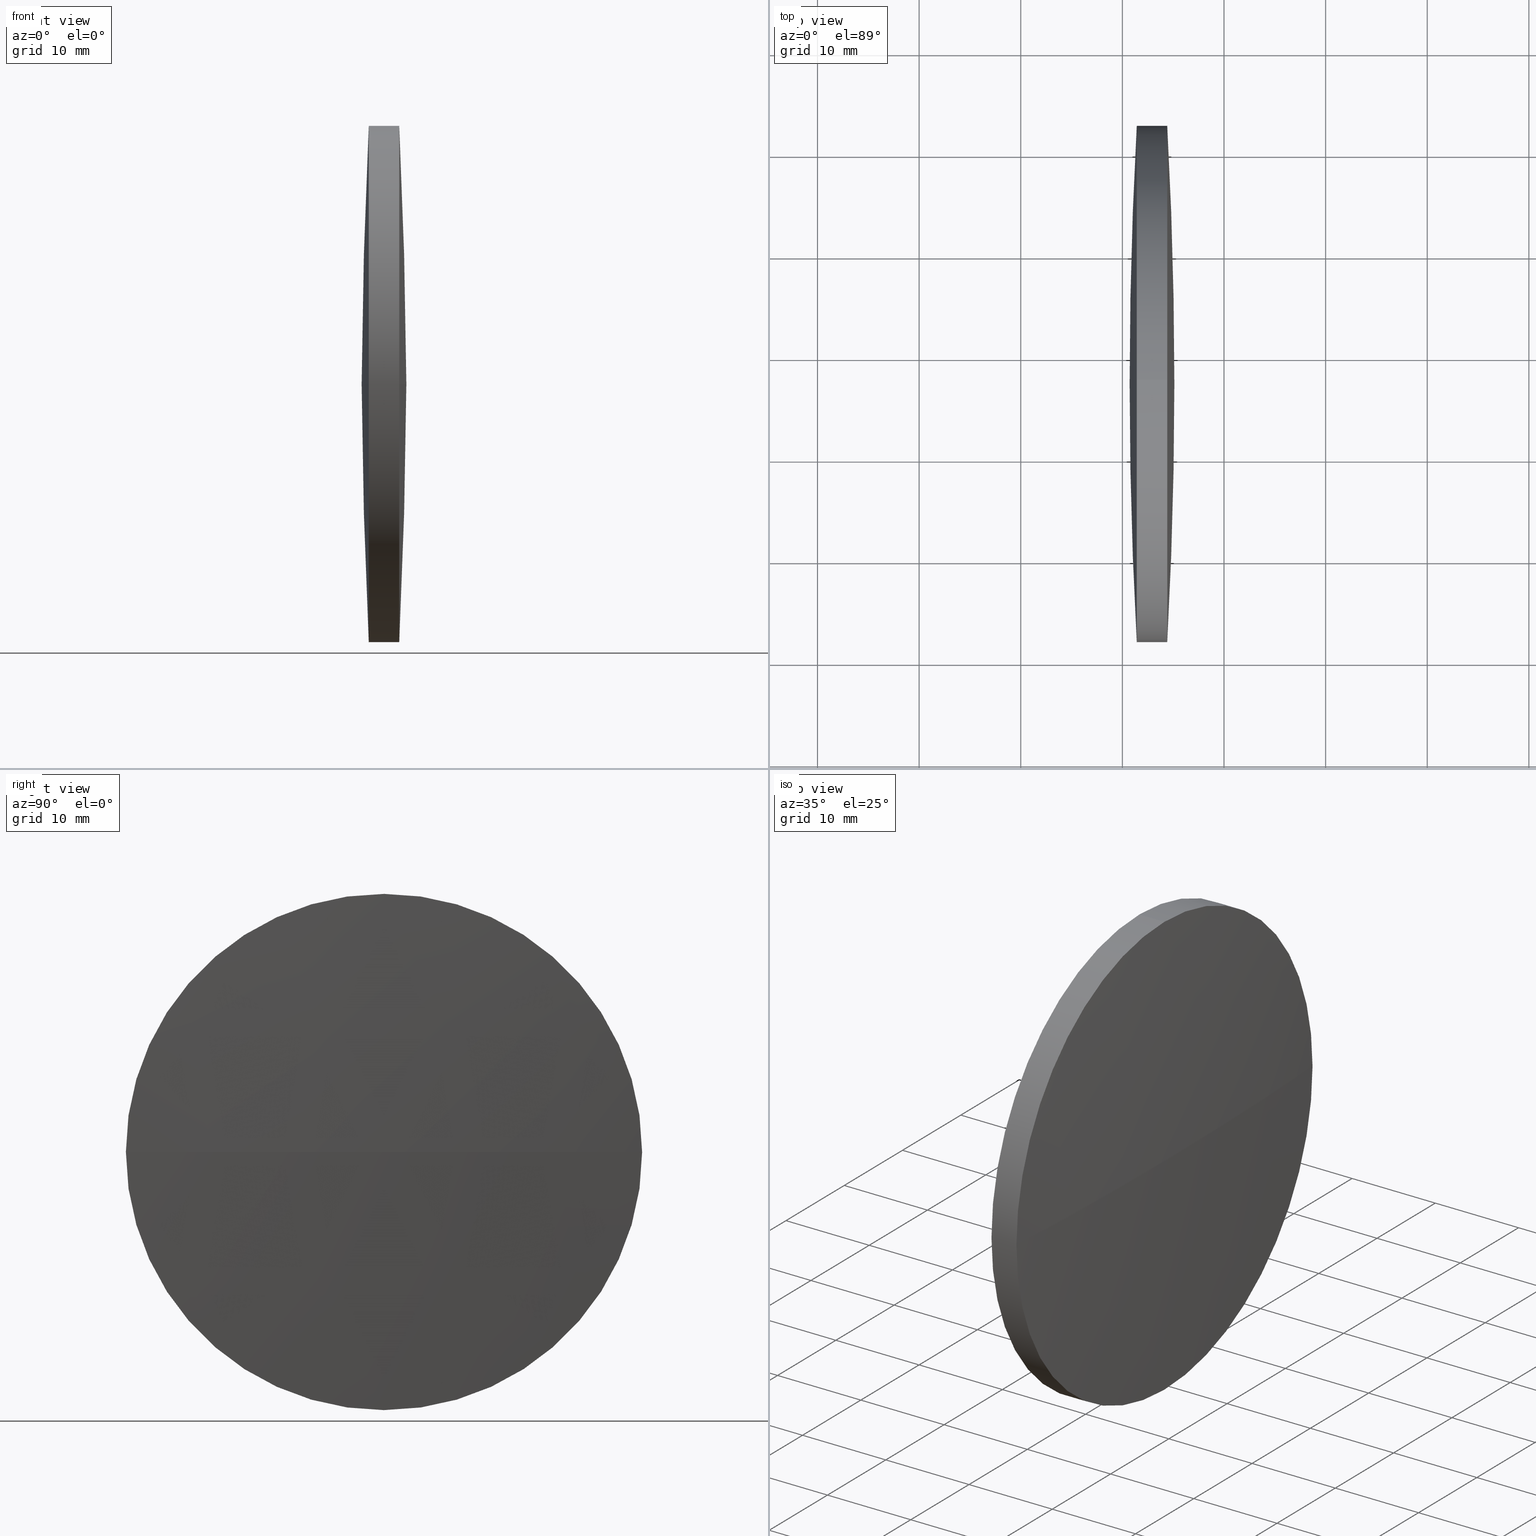
[diagram: canonical four-view strip — front | top / right | iso, engineering-drawing reading convention]
A machine part, canonical four-view strip (front | top / right | iso — engineering-drawing reading convention). The complete STEP part file that produces these views, byte-faithful:
ISO-10303-21;
HEADER;
FILE_DESCRIPTION (( 'STEP AP203' ),
    '1' );
FILE_NAME ('110110.STEP',
    '2019-07-08T08:31:53',
    ( '' ),
    ( '' ),
    'SwSTEP 2.0',
    'SolidWorks 2016',
    '' );
FILE_SCHEMA (( 'CONFIG_CONTROL_DESIGN' ));
ENDSEC;

DATA;
#1 = CARTESIAN_POINT ( 'NONE',  ( 175.1163831493249700, 97.23222604636886500, 0.0000000000000000000 ) ) ;
#2 = CIRCLE ( 'NONE', #60, 25.39999999999999100 ) ;
#3 = EDGE_CURVE ( 'NONE', #310, #177, #70, .T. ) ;
#4 = UNCERTAINTY_MEASURE_WITH_UNIT (LENGTH_MEASURE( 1.000000000000000100E-005 ), #144, 'distance_accuracy_value', 'NONE');
#5 = COORDINATED_UNIVERSAL_TIME_OFFSET ( 8, 0, .AHEAD. ) ;
#6 = DIRECTION ( 'NONE',  ( 0.0000000000000000000, 0.0000000000000000000, 1.000000000000000000 ) ) ;
#7 = PRODUCT_DEFINITION_SHAPE ( 'NONE', 'NONE',  #156 ) ;
#8 = CC_DESIGN_PERSON_AND_ORGANIZATION_ASSIGNMENT ( #134, #336, ( #174 ) ) ;
#9 = DIRECTION ( 'NONE',  ( -1.000000000000000000, -0.0000000000000000000, -0.0000000000000000000 ) ) ;
#10 = SPHERICAL_SURFACE ( 'NONE', #91, 461.1675577966340100 ) ;
#11 = SPHERICAL_SURFACE ( 'NONE', #24, 461.1675577966281000 ) ;
#12 = CC_DESIGN_APPROVAL ( #201, ( #290 ) ) ;
#13 = PERSON_AND_ORGANIZATION ( #19, #280 ) ;
#14 = PRODUCT_RELATED_PRODUCT_CATEGORY ( 'detail', '', ( #174 ) ) ;
#15 = VERTEX_POINT ( 'NONE', #314 ) ;
#16 = CC_DESIGN_PERSON_AND_ORGANIZATION_ASSIGNMENT ( #329, #230, ( #306 ) ) ;
#17 = LOCAL_TIME ( 16, 31, 53.00000000000000000, #207 ) ;
#18 = ORIENTED_EDGE ( 'NONE', *, *, #326, .T. ) ;
#19 = PERSON ( 'δָ��', 'δָ��', 'δָ��', ('δָ��'), ('δָ��'), ('δָ��') ) ;
#20 = EDGE_CURVE ( 'NONE', #143, #316, #212, .T. ) ;
#21 = APPLICATION_PROTOCOL_DEFINITION ( 'international standard', 'config_control_design', 1994, #342 ) ;
#22 = EDGE_LOOP ( 'NONE', ( #168, #48, #42, #78 ) ) ;
#23 = CALENDAR_DATE ( 2019, 8, 7 ) ;
#24 = AXIS2_PLACEMENT_3D ( 'NONE', #161, #241, #238 ) ;
#25 = MECHANICAL_CONTEXT ( 'NONE', #342, 'mechanical' ) ;
#26 =( GEOMETRIC_REPRESENTATION_CONTEXT ( 3 ) GLOBAL_UNCERTAINTY_ASSIGNED_CONTEXT ( ( #4 ) ) GLOBAL_UNIT_ASSIGNED_CONTEXT ( ( #144, #113, #141 ) ) REPRESENTATION_CONTEXT ( 'NONE', 'WORKASPACE' ) );
#27 = CIRCLE ( 'NONE', #220, 25.39999999999999100 ) ;
#28 = DIRECTION ( 'NONE',  ( -1.000000000000000000, -0.0000000000000000000, -0.0000000000000000000 ) ) ;
#29 = EDGE_LOOP ( 'NONE', ( #327, #89, #121, #231, #117, #249 ) ) ;
#30 = ADVANCED_FACE ( 'NONE', ( #243 ), #297, .T. ) ;
#31 = DIRECTION ( 'NONE',  ( 0.0000000000000000000, 0.0000000000000000000, 1.000000000000000000 ) ) ;
#32 = ORIENTED_EDGE ( 'NONE', *, *, #54, .F. ) ;
#33 = EDGE_CURVE ( 'NONE', #55, #195, #2, .T. ) ;
#34 = DIRECTION ( 'NONE',  ( -1.000000000000000000, -0.0000000000000000000, -0.0000000000000000000 ) ) ;
#35 = APPROVAL_DATE_TIME ( #116, #122 ) ;
#36 = DIRECTION ( 'NONE',  ( -1.000000000000000000, -0.0000000000000000000, -0.0000000000000000000 ) ) ;
#37 = CARTESIAN_POINT ( 'NONE',  ( 174.4163664064679400, 97.23222604636956100, 0.0000000000000000000 ) ) ;
#38 = FACE_OUTER_BOUND ( 'NONE', #227, .T. ) ;
#39 = CARTESIAN_POINT ( 'NONE',  ( 171.4164086921822200, 97.23222604636956100, 0.0000000000000000000 ) ) ;
#40 = DATE_AND_TIME ( #23, #43 ) ;
#41 = AXIS2_PLACEMENT_3D ( 'NONE', #242, #269, #188 ) ;
#42 = ORIENTED_EDGE ( 'NONE', *, *, #136, .F. ) ;
#43 = LOCAL_TIME ( 16, 31, 53.00000000000000000, #251 ) ;
#44 = AXIS2_PLACEMENT_3D ( 'NONE', #37, #81, #6 ) ;
#45 = CC_DESIGN_DATE_AND_TIME_ASSIGNMENT ( #319, #206, ( #156 ) ) ;
#46 = LOCAL_TIME ( 16, 31, 53.00000000000000000, #252 ) ;
#47 = APPLICATION_CONTEXT ( 'configuration controlled 3d designs of mechanical parts and assemblies' ) ;
#48 = ORIENTED_EDGE ( 'NONE', *, *, #332, .T. ) ;
#49 = AXIS2_PLACEMENT_3D ( 'NONE', #244, #114, #305 ) ;
#50 = APPROVAL_ROLE ( '' ) ;
#51 = SECURITY_CLASSIFICATION_LEVEL ( 'unclassified' ) ;
#52 = PERSON_AND_ORGANIZATION ( #19, #280 ) ;
#53 = DIRECTION ( 'NONE',  ( -1.000000000000000000, -0.0000000000000000000, -0.0000000000000000000 ) ) ;
#54 = EDGE_CURVE ( 'NONE', #195, #310, #289, .T. ) ;
#55 = VERTEX_POINT ( 'NONE', #265 ) ;
#56 = CALENDAR_DATE ( 2019, 8, 7 ) ;
#57 = DESIGN_CONTEXT ( 'detailed design', #229, 'design' ) ;
#58 = CARTESIAN_POINT ( 'NONE',  ( 631.8839497459532600, 97.23222604636890800, 0.0000000000000000000 ) ) ;
#59 = CIRCLE ( 'NONE', #75, 461.1675577966281000 ) ;
#60 = AXIS2_PLACEMENT_3D ( 'NONE', #137, #87, #107 ) ;
#61 = CARTESIAN_POINT ( 'NONE',  ( 171.4164086921822200, 122.6322260463687600, 0.0000000000000000000 ) ) ;
#62 = DATE_AND_TIME ( #76, #223 ) ;
#63 = PERSON_AND_ORGANIZATION ( #19, #280 ) ;
#64 = AXIS2_PLACEMENT_3D ( 'NONE', #261, #215, #318 ) ;
#65 = CIRCLE ( 'NONE', #77, 25.39999999999999100 ) ;
#66 = ORIENTED_EDGE ( 'NONE', *, *, #344, .T. ) ;
#67 = CALENDAR_DATE ( 2019, 8, 7 ) ;
#68 = MANIFOLD_SOLID_BREP ( '��ת1', #294 ) ;
#69 = APPROVAL_PERSON_ORGANIZATION ( #139, #85, #126 ) ;
#70 = CIRCLE ( 'NONE', #189, 25.39999999999999100 ) ;
#71 = AXIS2_PLACEMENT_3D ( 'NONE', #190, #162, #82 ) ;
#72 = PERSON_AND_ORGANIZATION_ROLE ( 'design_owner' ) ;
#73 = ADVANCED_FACE ( 'NONE', ( #165 ), #11, .T. ) ;
#74 = ORIENTED_EDGE ( 'NONE', *, *, #302, .T. ) ;
#75 = AXIS2_PLACEMENT_3D ( 'NONE', #58, #324, #163 ) ;
#76 = CALENDAR_DATE ( 2019, 8, 7 ) ;
#77 = AXIS2_PLACEMENT_3D ( 'NONE', #271, #9, #193 ) ;
#78 = ORIENTED_EDGE ( 'NONE', *, *, #3, .F. ) ;
#79 = DIRECTION ( 'NONE',  ( 0.0000000000000000000, 0.0000000000000000000, 1.000000000000000000 ) ) ;
#80 = LOCAL_TIME ( 16, 31, 53.00000000000000000, #93 ) ;
#81 = DIRECTION ( 'NONE',  ( -1.000000000000000000, -0.0000000000000000000, -0.0000000000000000000 ) ) ;
#82 = DIRECTION ( 'NONE',  ( 1.000000000000000000, 0.0000000000000000000, 0.0000000000000000000 ) ) ;
#83 = ORIENTED_EDGE ( 'NONE', *, *, #33, .T. ) ;
#84 = PERSON_AND_ORGANIZATION ( #19, #280 ) ;
#85 = APPROVAL ( #308, 'δָ��' ) ;
#86 = COORDINATED_UNIVERSAL_TIME_OFFSET ( 8, 0, .AHEAD. ) ;
#87 = DIRECTION ( 'NONE',  ( -1.000000000000000000, -0.0000000000000000000, -0.0000000000000000000 ) ) ;
#88 = SPHERICAL_SURFACE ( 'NONE', #130, 461.1675577966340100 ) ;
#89 = ORIENTED_EDGE ( 'NONE', *, *, #203, .T. ) ;
#90 = DIRECTION ( 'NONE',  ( -1.000000000000000000, -0.0000000000000000000, -0.0000000000000000000 ) ) ;
#91 = AXIS2_PLACEMENT_3D ( 'NONE', #109, #213, #140 ) ;
#92 = ORIENTED_EDGE ( 'NONE', *, *, #33, .F. ) ;
#93 = COORDINATED_UNIVERSAL_TIME_OFFSET ( 8, 0, .AHEAD. ) ;
#94 = FACE_OUTER_BOUND ( 'NONE', #29, .T. ) ;
#95 = VERTEX_POINT ( 'NONE', #268 ) ;
#96 = AXIS2_PLACEMENT_3D ( 'NONE', #259, #28, #208 ) ;
#97 = APPROVAL_PERSON_ORGANIZATION ( #173, #253, #102 ) ;
#98 = PERSON_AND_ORGANIZATION_ROLE ( 'creator' ) ;
#99 = DATE_TIME_ROLE ( 'classification_date' ) ;
#100 = ADVANCED_FACE ( 'NONE', ( #38 ), #210, .T. ) ;
#101 = DATE_TIME_ROLE ( 'classification_date' ) ;
#102 = APPROVAL_ROLE ( '' ) ;
#103 = SECURITY_CLASSIFICATION ( '', '', #313 ) ;
#104 = VECTOR ( 'NONE', #34, 1000.000000000000000 ) ;
#105 = COORDINATED_UNIVERSAL_TIME_OFFSET ( 8, 0, .AHEAD. ) ;
#106 = AXIS2_PLACEMENT_3D ( 'NONE', #217, #164, #323 ) ;
#107 = DIRECTION ( 'NONE',  ( 0.0000000000000000000, 0.0000000000000000000, 1.000000000000000000 ) ) ;
#108 = ORIENTED_EDGE ( 'NONE', *, *, #302, .F. ) ;
#109 = CARTESIAN_POINT ( 'NONE',  ( -286.0511746473089800, 97.23222604636883700, 0.0000000000000000000 ) ) ;
#110 = APPROVAL_DATE_TIME ( #40, #159 ) ;
#111 = DIRECTION ( 'NONE',  ( -0.0000000000000000000, 0.0000000000000000000, -1.000000000000000000 ) ) ;
#112 = CARTESIAN_POINT ( 'NONE',  ( 165.7441079421506900, 97.23222604636956100, 25.39999999999999100 ) ) ;
#113 =( NAMED_UNIT ( * ) PLANE_ANGLE_UNIT ( ) SI_UNIT ( $, .RADIAN. ) );
#114 = DIRECTION ( 'NONE',  ( 0.0000000000000000000, 0.0000000000000000000, 1.000000000000000000 ) ) ;
#115 = CC_DESIGN_PERSON_AND_ORGANIZATION_ASSIGNMENT ( #157, #98, ( #317 ) ) ;
#116 = DATE_AND_TIME ( #67, #187 ) ;
#117 = ORIENTED_EDGE ( 'NONE', *, *, #205, .F. ) ;
#118 = CALENDAR_DATE ( 2019, 8, 7 ) ;
#119 = CC_DESIGN_APPROVAL ( #122, ( #156 ) ) ;
#120 = DIRECTION ( 'NONE',  ( 1.000000000000000000, 0.0000000000000000000, 0.0000000000000000000 ) ) ;
#121 = ORIENTED_EDGE ( 'NONE', *, *, #344, .F. ) ;
#122 = APPROVAL ( #311, 'δָ��' ) ;
#123 = PERSON_AND_ORGANIZATION_ROLE ( 'creator' ) ;
#124 = COORDINATED_UNIVERSAL_TIME_OFFSET ( 8, 0, .AHEAD. ) ;
#125 = PERSON_AND_ORGANIZATION_ROLE ( 'classification_officer' ) ;
#126 = APPROVAL_ROLE ( '' ) ;
#127 = VECTOR ( 'NONE', #320, 1000.000000000000000 ) ;
#128 = MECHANICAL_CONTEXT ( 'NONE', #47, 'mechanical' ) ;
#129 = CALENDAR_DATE ( 2019, 8, 7 ) ;
#130 = AXIS2_PLACEMENT_3D ( 'NONE', #160, #111, #267 ) ;
#131 = ADVANCED_FACE ( 'NONE', ( #275 ), #88, .T. ) ;
#132 = ORIENTED_EDGE ( 'NONE', *, *, #225, .F. ) ;
#133 = CARTESIAN_POINT ( 'NONE',  ( 174.4163664064679400, 97.23222604636956100, 0.0000000000000000000 ) ) ;
#134 = PERSON_AND_ORGANIZATION ( #19, #280 ) ;
#135 = CARTESIAN_POINT ( 'NONE',  ( 174.4163664064679400, 97.23222604636956100, 25.39999999999999100 ) ) ;
#136 = EDGE_CURVE ( 'NONE', #177, #55, #171, .T. ) ;
#137 = CARTESIAN_POINT ( 'NONE',  ( 174.4163664064679400, 97.23222604636956100, 0.0000000000000000000 ) ) ;
#138 = CC_DESIGN_PERSON_AND_ORGANIZATION_ASSIGNMENT ( #13, #204, ( #306 ) ) ;
#139 = PERSON_AND_ORGANIZATION ( #19, #280 ) ;
#140 = DIRECTION ( 'NONE',  ( 0.0000000000000000000, 1.000000000000000000, 0.0000000000000000000 ) ) ;
#141 =( NAMED_UNIT ( * ) SI_UNIT ( $, .STERADIAN. ) SOLID_ANGLE_UNIT ( ) );
#142 = CARTESIAN_POINT ( 'NONE',  ( 174.4163664064679700, 122.6322260463689700, 0.0000000000000000000 ) ) ;
#143 = VERTEX_POINT ( 'NONE', #61 ) ;
#144 =( LENGTH_UNIT ( ) NAMED_UNIT ( * ) SI_UNIT ( .MILLI., .METRE. ) );
#145 = AXIS2_PLACEMENT_3D ( 'NONE', #133, #322, #31 ) ;
#146 = CC_DESIGN_PERSON_AND_ORGANIZATION_ASSIGNMENT ( #149, #123, ( #290 ) ) ;
#147 = VERTEX_POINT ( 'NONE', #1 ) ;
#148 = DESIGN_CONTEXT ( 'detailed design', #258, 'design' ) ;
#149 = PERSON_AND_ORGANIZATION ( #19, #280 ) ;
#150 = DIRECTION ( 'NONE',  ( 0.0000000000000000000, 0.0000000000000000000, 1.000000000000000000 ) ) ;
#151 = CC_DESIGN_PERSON_AND_ORGANIZATION_ASSIGNMENT ( #52, #125, ( #169 ) ) ;
#152 = CIRCLE ( 'NONE', #71, 461.1675577966340100 ) ;
#153 = ORIENTED_EDGE ( 'NONE', *, *, #225, .T. ) ;
#154 = APPROVAL_STATUS ( 'not_yet_approved' ) ;
#155 = ORIENTED_EDGE ( 'NONE', *, *, #20, .T. ) ;
#156 = PRODUCT_DEFINITION ( 'δ֪', '', #317, #57 ) ;
#157 = PERSON_AND_ORGANIZATION ( #19, #280 ) ;
#158 = CARTESIAN_POINT ( 'NONE',  ( 174.4163664064679400, 97.23222604636956100, 0.0000000000000000000 ) ) ;
#159 = APPROVAL ( #340, 'δָ��' ) ;
#160 = CARTESIAN_POINT ( 'NONE',  ( -286.0511746473089800, 97.23222604636883700, 0.0000000000000000000 ) ) ;
#161 = CARTESIAN_POINT ( 'NONE',  ( 631.8839497459532600, 97.23222604636890800, 0.0000000000000000000 ) ) ;
#162 = DIRECTION ( 'NONE',  ( -0.0000000000000000000, 0.0000000000000000000, 1.000000000000000000 ) ) ;
#163 = DIRECTION ( 'NONE',  ( 0.0000000000000000000, 1.000000000000000000, 1.224646799147353000E-016 ) ) ;
#164 = DIRECTION ( 'NONE',  ( -1.000000000000000000, -0.0000000000000000000, -0.0000000000000000000 ) ) ;
#165 = FACE_OUTER_BOUND ( 'NONE', #274, .T. ) ;
#166 = SHAPE_DEFINITION_REPRESENTATION ( #245, #254 ) ;
#167 = CARTESIAN_POINT ( 'NONE',  ( 0.0000000000000000000, 0.0000000000000000000, 0.0000000000000000000 ) ) ;
#168 = ORIENTED_EDGE ( 'NONE', *, *, #185, .F. ) ;
#169 = SECURITY_CLASSIFICATION ( '', '', #51 ) ;
#170 = PRODUCT ( '110110', '110110', '', ( #128 ) ) ;
#171 = CIRCLE ( 'NONE', #44, 25.39999999999999100 ) ;
#172 = VERTEX_POINT ( 'NONE', #296 ) ;
#173 = PERSON_AND_ORGANIZATION ( #19, #280 ) ;
#174 = PRODUCT ( '110110', '110110', '', ( #25 ) ) ;
#175 = CC_DESIGN_APPROVAL ( #253, ( #169 ) ) ;
#176 = LINE ( 'NONE', #112, #127 ) ;
#177 = VERTEX_POINT ( 'NONE', #295 ) ;
#178 = PERSON_AND_ORGANIZATION_ROLE ( 'classification_officer' ) ;
#179 = APPROVAL_ROLE ( '' ) ;
#180 = PERSON_AND_ORGANIZATION ( #19, #280 ) ;
#181 = DATE_AND_TIME ( #278, #287 ) ;
#182 = APPROVAL_STATUS ( 'not_yet_approved' ) ;
#183 = DIRECTION ( 'NONE',  ( 0.0000000000000000000, 0.0000000000000000000, 1.000000000000000000 ) ) ;
#184 = LOCAL_TIME ( 16, 31, 53.00000000000000000, #328 ) ;
#185 = EDGE_CURVE ( 'NONE', #147, #310, #152, .T. ) ;
#186 = ORIENTED_EDGE ( 'NONE', *, *, #136, .T. ) ;
#187 = LOCAL_TIME ( 16, 31, 53.00000000000000000, #124 ) ;
#188 = DIRECTION ( 'NONE',  ( 0.0000000000000000000, 1.000000000000000000, 0.0000000000000000000 ) ) ;
#189 = AXIS2_PLACEMENT_3D ( 'NONE', #158, #53, #183 ) ;
#190 = CARTESIAN_POINT ( 'NONE',  ( -286.0511746473089800, 97.23222604636883700, 0.0000000000000000000 ) ) ;
#191 = LINE ( 'NONE', #292, #104 ) ;
#192 = COORDINATED_UNIVERSAL_TIME_OFFSET ( 8, 0, .AHEAD. ) ;
#193 = DIRECTION ( 'NONE',  ( 0.0000000000000000000, 0.0000000000000000000, 1.000000000000000000 ) ) ;
#194 = CC_DESIGN_PERSON_AND_ORGANIZATION_ASSIGNMENT ( #240, #178, ( #103 ) ) ;
#195 = VERTEX_POINT ( 'NONE', #135 ) ;
#196 = APPROVAL_DATE_TIME ( #331, #201 ) ;
#197 = AXIS2_PLACEMENT_3D ( 'NONE', #39, #90, #272 ) ;
#198 = CYLINDRICAL_SURFACE ( 'NONE', #266, 25.39999999999999100 ) ;
#199 = ORIENTED_EDGE ( 'NONE', *, *, #276, .T. ) ;
#200 = APPROVAL_STATUS ( 'not_yet_approved' ) ;
#201 = APPROVAL ( #182, 'δָ��' ) ;
#202 = APPLICATION_PROTOCOL_DEFINITION ( 'international standard', 'config_control_design', 1994, #229 ) ;
#203 = EDGE_CURVE ( 'NONE', #177, #95, #191, .T. ) ;
#204 = PERSON_AND_ORGANIZATION_ROLE ( 'creator' ) ;
#205 = EDGE_CURVE ( 'NONE', #195, #15, #176, .T. ) ;
#206 = DATE_TIME_ROLE ( 'creation_date' ) ;
#207 = COORDINATED_UNIVERSAL_TIME_OFFSET ( 8, 0, .AHEAD. ) ;
#208 = DIRECTION ( 'NONE',  ( 0.0000000000000000000, 0.0000000000000000000, 1.000000000000000000 ) ) ;
#209 = CIRCLE ( 'NONE', #197, 25.39999999999999100 ) ;
#210 = SPHERICAL_SURFACE ( 'NONE', #41, 461.1675577966281000 ) ;
#211 = CALENDAR_DATE ( 2019, 8, 7 ) ;
#212 = CIRCLE ( 'NONE', #64, 461.1675577966279900 ) ;
#213 = DIRECTION ( 'NONE',  ( -0.0000000000000000000, 0.0000000000000000000, -1.000000000000000000 ) ) ;
#214 = APPROVAL_PERSON_ORGANIZATION ( #341, #201, #224 ) ;
#215 = DIRECTION ( 'NONE',  ( -0.0000000000000000000, 0.0000000000000000000, 1.000000000000000000 ) ) ;
#216 = LOCAL_TIME ( 16, 31, 53.00000000000000000, #192 ) ;
#217 = CARTESIAN_POINT ( 'NONE',  ( 171.4164086921822200, 97.23222604636956100, 0.0000000000000000000 ) ) ;
#218 = DIRECTION ( 'NONE',  ( -1.000000000000000000, -0.0000000000000000000, -0.0000000000000000000 ) ) ;
#219 = DIRECTION ( 'NONE',  ( 0.0000000000000000000, 1.224646799147353200E-016, -1.000000000000000000 ) ) ;
#220 = AXIS2_PLACEMENT_3D ( 'NONE', #325, #218, #246 ) ;
#221 = APPROVAL_PERSON_ORGANIZATION ( #180, #159, #288 ) ;
#222 = CC_DESIGN_DATE_AND_TIME_ASSIGNMENT ( #345, #99, ( #103 ) ) ;
#223 = LOCAL_TIME ( 16, 31, 53.00000000000000000, #105 ) ;
#224 = APPROVAL_ROLE ( '' ) ;
#225 = EDGE_CURVE ( 'NONE', #172, #316, #59, .T. ) ;
#226 = DATE_TIME_ROLE ( 'creation_date' ) ;
#227 = EDGE_LOOP ( 'NONE', ( #66, #199, #153, #279 ) ) ;
#228 = CC_DESIGN_DATE_AND_TIME_ASSIGNMENT ( #277, #226, ( #290 ) ) ;
#229 = APPLICATION_CONTEXT ( 'configuration controlled 3d designs of mechanical parts and assemblies' ) ;
#230 = PERSON_AND_ORGANIZATION_ROLE ( 'design_supplier' ) ;
#231 = ORIENTED_EDGE ( 'NONE', *, *, #326, .F. ) ;
#232 = ADVANCED_FACE ( 'NONE', ( #309 ), #10, .T. ) ;
#233 = CC_DESIGN_DATE_AND_TIME_ASSIGNMENT ( #247, #101, ( #169 ) ) ;
#234 = PERSON_AND_ORGANIZATION ( #19, #280 ) ;
#235 = CARTESIAN_POINT ( 'NONE',  ( 165.7441079421506900, 97.23222604636956100, 0.0000000000000000000 ) ) ;
#236 = ORIENTED_EDGE ( 'NONE', *, *, #203, .F. ) ;
#237 = ADVANCED_FACE ( 'NONE', ( #94 ), #198, .T. ) ;
#238 = DIRECTION ( 'NONE',  ( 0.0000000000000000000, 1.000000000000000000, 0.0000000000000000000 ) ) ;
#239 = CC_DESIGN_PERSON_AND_ORGANIZATION_ASSIGNMENT ( #84, #281, ( #317 ) ) ;
#240 = PERSON_AND_ORGANIZATION ( #19, #280 ) ;
#241 = DIRECTION ( 'NONE',  ( -0.0000000000000000000, 0.0000000000000000000, -1.000000000000000000 ) ) ;
#242 = CARTESIAN_POINT ( 'NONE',  ( 631.8839497459532600, 97.23222604636890800, 0.0000000000000000000 ) ) ;
#243 = FACE_OUTER_BOUND ( 'NONE', #307, .T. ) ;
#244 = CARTESIAN_POINT ( 'NONE',  ( 0.0000000000000000000, 0.0000000000000000000, 0.0000000000000000000 ) ) ;
#245 = PRODUCT_DEFINITION_SHAPE ( 'NONE', 'NONE',  #290 ) ;
#246 = DIRECTION ( 'NONE',  ( 0.0000000000000000000, 0.0000000000000000000, 1.000000000000000000 ) ) ;
#247 = DATE_AND_TIME ( #315, #46 ) ;
#248 = APPROVAL ( #154, 'δָ��' ) ;
#249 = ORIENTED_EDGE ( 'NONE', *, *, #54, .T. ) ;
#250 = CC_DESIGN_PERSON_AND_ORGANIZATION_ASSIGNMENT ( #338, #285, ( #156 ) ) ;
#251 = COORDINATED_UNIVERSAL_TIME_OFFSET ( 8, 0, .AHEAD. ) ;
#252 = COORDINATED_UNIVERSAL_TIME_OFFSET ( 8, 0, .AHEAD. ) ;
#253 = APPROVAL ( #200, 'δָ��' ) ;
#254 = ADVANCED_BREP_SHAPE_REPRESENTATION ( '110110', ( #68, #49 ), #26 ) ;
#255 = APPLICATION_PROTOCOL_DEFINITION ( 'international standard', 'config_control_design', 1994, #47 ) ;
#256 = PERSON_AND_ORGANIZATION ( #19, #280 ) ;
#257 = APPROVAL_DATE_TIME ( #181, #248 ) ;
#258 = APPLICATION_CONTEXT ( 'configuration controlled 3d designs of mechanical parts and assemblies' ) ;
#259 = CARTESIAN_POINT ( 'NONE',  ( 165.7441079421506900, 97.23222604636956100, 0.0000000000000000000 ) ) ;
#260 = LOCAL_TIME ( 16, 31, 53.00000000000000000, #5 ) ;
#261 = CARTESIAN_POINT ( 'NONE',  ( 631.8839497459532600, 97.23222604636890800, 0.0000000000000000000 ) ) ;
#262 = CC_DESIGN_APPROVAL ( #248, ( #103 ) ) ;
#263 = CIRCLE ( 'NONE', #106, 25.39999999999999100 ) ;
#264 = ORIENTED_EDGE ( 'NONE', *, *, #185, .T. ) ;
#265 = CARTESIAN_POINT ( 'NONE',  ( 174.4163664064679700, 71.83222604636942800, -3.110602869834204700E-015 ) ) ;
#266 = AXIS2_PLACEMENT_3D ( 'NONE', #235, #36, #79 ) ;
#267 = DIRECTION ( 'NONE',  ( 0.0000000000000000000, 1.000000000000000000, 0.0000000000000000000 ) ) ;
#268 = CARTESIAN_POINT ( 'NONE',  ( 171.4164086921822200, 97.23222604636956100, -25.39999999999999100 ) ) ;
#269 = DIRECTION ( 'NONE',  ( -0.0000000000000000000, 0.0000000000000000000, -1.000000000000000000 ) ) ;
#270 = APPROVAL_DATE_TIME ( #62, #253 ) ;
#271 = CARTESIAN_POINT ( 'NONE',  ( 171.4164086921822200, 97.23222604636956100, 0.0000000000000000000 ) ) ;
#272 = DIRECTION ( 'NONE',  ( 0.0000000000000000000, 0.0000000000000000000, 1.000000000000000000 ) ) ;
#273 = CC_DESIGN_SECURITY_CLASSIFICATION ( #169, ( #317 ) ) ;
#274 = EDGE_LOOP ( 'NONE', ( #132, #74, #18, #155 ) ) ;
#275 = FACE_OUTER_BOUND ( 'NONE', #22, .T. ) ;
#276 = EDGE_CURVE ( 'NONE', #95, #172, #27, .T. ) ;
#277 = DATE_AND_TIME ( #129, #260 ) ;
#278 = CALENDAR_DATE ( 2019, 8, 7 ) ;
#279 = ORIENTED_EDGE ( 'NONE', *, *, #20, .F. ) ;
#280 = ORGANIZATION ( 'δָ��', 'δָ��', '' ) ;
#281 = PERSON_AND_ORGANIZATION_ROLE ( 'design_supplier' ) ;
#282 = DATE_AND_TIME ( #56, #80 ) ;
#283 = AXIS2_PLACEMENT_3D ( 'NONE', #167, #150, #120 ) ;
#284 = ORIENTED_EDGE ( 'NONE', *, *, #332, .F. ) ;
#285 = PERSON_AND_ORGANIZATION_ROLE ( 'creator' ) ;
#286 = CALENDAR_DATE ( 2019, 8, 7 ) ;
#287 = LOCAL_TIME ( 16, 31, 53.00000000000000000, #86 ) ;
#288 = APPROVAL_ROLE ( '' ) ;
#289 = CIRCLE ( 'NONE', #145, 25.39999999999999100 ) ;
#290 = PRODUCT_DEFINITION ( 'δ֪', '', #306, #148 ) ;
#291 = APPROVAL_PERSON_ORGANIZATION ( #63, #248, #50 ) ;
#292 = CARTESIAN_POINT ( 'NONE',  ( 165.7441079421506900, 97.23222604636956100, -25.39999999999999100 ) ) ;
#293 = CARTESIAN_POINT ( 'NONE',  ( 170.7163919493251900, 97.23222604636893600, 0.0000000000000000000 ) ) ;
#294 = CLOSED_SHELL ( 'NONE', ( #237, #131, #100, #73, #232, #30 ) ) ;
#295 = CARTESIAN_POINT ( 'NONE',  ( 174.4163664064679400, 97.23222604636956100, -25.39999999999999100 ) ) ;
#296 = CARTESIAN_POINT ( 'NONE',  ( 171.4164086921822200, 71.83222604636974000, -3.110602869834177100E-015 ) ) ;
#297 = CYLINDRICAL_SURFACE ( 'NONE', #96, 25.39999999999999100 ) ;
#298 = CARTESIAN_POINT ( 'NONE',  ( -286.0511746473089800, 97.23222604636883700, 0.0000000000000000000 ) ) ;
#299 = DIRECTION ( 'NONE',  ( 0.0000000000000000000, 1.000000000000000000, 1.224646799147353200E-016 ) ) ;
#300 = CC_DESIGN_SECURITY_CLASSIFICATION ( #103, ( #306 ) ) ;
#301 = APPROVAL_PERSON_ORGANIZATION ( #234, #122, #179 ) ;
#302 = EDGE_CURVE ( 'NONE', #172, #15, #209, .T. ) ;
#303 = ORIENTED_EDGE ( 'NONE', *, *, #205, .T. ) ;
#304 = PRODUCT_RELATED_PRODUCT_CATEGORY ( 'detail', '', ( #170 ) ) ;
#305 = DIRECTION ( 'NONE',  ( 1.000000000000000000, 0.0000000000000000000, 0.0000000000000000000 ) ) ;
#306 = PRODUCT_DEFINITION_FORMATION_WITH_SPECIFIED_SOURCE ( '�κ�', '', #170, .NOT_KNOWN. ) ;
#307 = EDGE_LOOP ( 'NONE', ( #236, #186, #83, #303, #108, #343 ) ) ;
#308 = APPROVAL_STATUS ( 'not_yet_approved' ) ;
#309 = FACE_OUTER_BOUND ( 'NONE', #335, .T. ) ;
#310 = VERTEX_POINT ( 'NONE', #142 ) ;
#311 = APPROVAL_STATUS ( 'not_yet_approved' ) ;
#312 = AXIS2_PLACEMENT_3D ( 'NONE', #298, #219, #299 ) ;
#313 = SECURITY_CLASSIFICATION_LEVEL ( 'unclassified' ) ;
#314 = CARTESIAN_POINT ( 'NONE',  ( 171.4164086921822200, 97.23222604636956100, 25.39999999999999100 ) ) ;
#315 = CALENDAR_DATE ( 2019, 8, 7 ) ;
#316 = VERTEX_POINT ( 'NONE', #293 ) ;
#317 = PRODUCT_DEFINITION_FORMATION_WITH_SPECIFIED_SOURCE ( '�κ�', '', #174, .NOT_KNOWN. ) ;
#318 = DIRECTION ( 'NONE',  ( 1.000000000000000000, 0.0000000000000000000, 0.0000000000000000000 ) ) ;
#319 = DATE_AND_TIME ( #118, #184 ) ;
#320 = DIRECTION ( 'NONE',  ( -1.000000000000000000, -0.0000000000000000000, -0.0000000000000000000 ) ) ;
#321 = CC_DESIGN_APPROVAL ( #85, ( #306 ) ) ;
#322 = DIRECTION ( 'NONE',  ( -1.000000000000000000, -0.0000000000000000000, -0.0000000000000000000 ) ) ;
#323 = DIRECTION ( 'NONE',  ( 0.0000000000000000000, 0.0000000000000000000, 1.000000000000000000 ) ) ;
#324 = DIRECTION ( 'NONE',  ( 0.0000000000000000000, 1.224646799147353200E-016, -1.000000000000000000 ) ) ;
#325 = CARTESIAN_POINT ( 'NONE',  ( 171.4164086921822200, 97.23222604636956100, 0.0000000000000000000 ) ) ;
#326 = EDGE_CURVE ( 'NONE', #15, #143, #65, .T. ) ;
#327 = ORIENTED_EDGE ( 'NONE', *, *, #3, .T. ) ;
#328 = COORDINATED_UNIVERSAL_TIME_OFFSET ( 8, 0, .AHEAD. ) ;
#329 = PERSON_AND_ORGANIZATION ( #19, #280 ) ;
#330 = CC_DESIGN_PERSON_AND_ORGANIZATION_ASSIGNMENT ( #256, #72, ( #170 ) ) ;
#331 = DATE_AND_TIME ( #286, #17 ) ;
#332 = EDGE_CURVE ( 'NONE', #147, #55, #334, .T. ) ;
#333 = APPROVAL_DATE_TIME ( #282, #85 ) ;
#334 = CIRCLE ( 'NONE', #312, 461.1675577966340100 ) ;
#335 = EDGE_LOOP ( 'NONE', ( #284, #264, #32, #92 ) ) ;
#336 = PERSON_AND_ORGANIZATION_ROLE ( 'design_owner' ) ;
#337 = APPLICATION_PROTOCOL_DEFINITION ( 'international standard', 'config_control_design', 1994, #258 ) ;
#338 = PERSON_AND_ORGANIZATION ( #19, #280 ) ;
#339 = CC_DESIGN_APPROVAL ( #159, ( #317 ) ) ;
#340 = APPROVAL_STATUS ( 'not_yet_approved' ) ;
#341 = PERSON_AND_ORGANIZATION ( #19, #280 ) ;
#342 = APPLICATION_CONTEXT ( 'configuration controlled 3d designs of mechanical parts and assemblies' ) ;
#343 = ORIENTED_EDGE ( 'NONE', *, *, #276, .F. ) ;
#344 = EDGE_CURVE ( 'NONE', #143, #95, #263, .T. ) ;
#345 = DATE_AND_TIME ( #211, #216 ) ;
ENDSEC;
END-ISO-10303-21;
